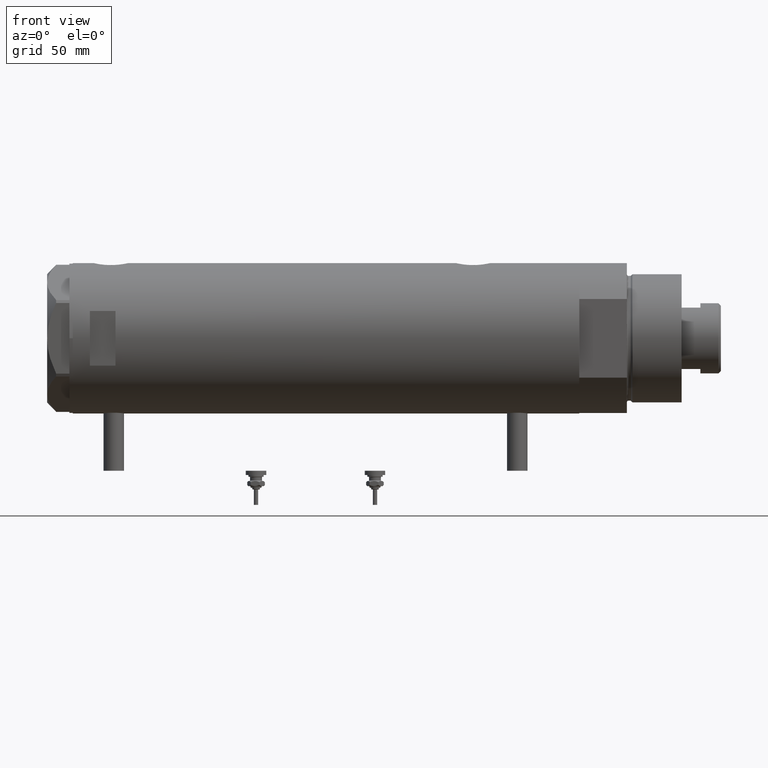
[diagram: clean part render]
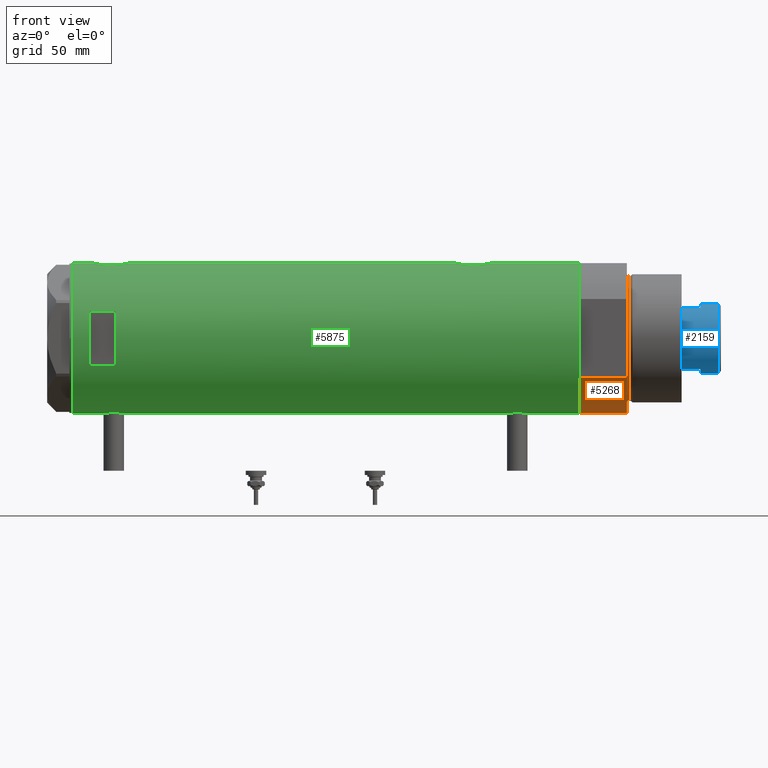
[diagram: same view with three faces highlighted in distinct colors, each labeled with its STEP entity id]
A machine part, front view with three faces highlighted in distinct colors.
Their STEP definitions:

[orange] entity #5268 — the highlighted cylindrical surface (partial cylindrical patch) has radius 44 mm, axis along (-1, -0, 0).
#34 = VECTOR ( 'NONE', #3246, 1000.000000000000000 ) ;
#63 = EDGE_CURVE ( 'NONE', #997, #3345, #1968, .T. ) ;
#121 = AXIS2_PLACEMENT_3D ( 'NONE', #3230, #3288, #5940 ) ;
#432 = CARTESIAN_POINT ( 'NONE',  ( 23.01629857296780557, -37.50000000000000000, 0.000000000000000000 ) ) ;
#449 = VERTEX_POINT ( 'NONE', #3900 ) ;
#583 = EDGE_CURVE ( 'NONE', #3345, #1297, #5446, .T. ) ;
#898 = LINE ( 'NONE', #432, #34 ) ;
#997 = VERTEX_POINT ( 'NONE', #1827 ) ;
#1075 = CARTESIAN_POINT ( 'NONE',  ( 23.01629857296780557, 37.50000000000000000, 27.89999999999999858 ) ) ;
#1089 = EDGE_CURVE ( 'NONE', #997, #449, #898, .T. ) ;
#1153 = CYLINDRICAL_SURFACE ( 'NONE', #5597, 44.00000000000000000 ) ;
#1291 = VECTOR ( 'NONE', #1435, 1000.000000000000000 ) ;
#1297 = VERTEX_POINT ( 'NONE', #1075 ) ;
#1435 = DIRECTION ( 'NONE',  ( -0.000000000000000000, -0.000000000000000000, 1.000000000000000000 ) ) ;
#1511 = CARTESIAN_POINT ( 'NONE',  ( 0.000000000000000000, 0.000000000000000000, 27.89999999999999858 ) ) ;
#1759 = EDGE_CURVE ( 'NONE', #449, #1297, #4981, .T. ) ;
#1827 = CARTESIAN_POINT ( 'NONE',  ( 23.01629857296780557, -37.50000000000000000, 0.000000000000000000 ) ) ;
#1968 = CIRCLE ( 'NONE', #121, 44.00000000000000000 ) ;
#2250 = ORIENTED_EDGE ( 'NONE', *, *, #1759, .F. ) ;
#2375 = AXIS2_PLACEMENT_3D ( 'NONE', #1511, #3404, #5259 ) ;
#2841 = ORIENTED_EDGE ( 'NONE', *, *, #1089, .F. ) ;
#3122 = CARTESIAN_POINT ( 'NONE',  ( 23.01629857296780557, 37.50000000000000000, 0.000000000000000000 ) ) ;
#3230 = CARTESIAN_POINT ( 'NONE',  ( 0.000000000000000000, 0.000000000000000000, 0.000000000000000000 ) ) ;
#3246 = DIRECTION ( 'NONE',  ( -0.000000000000000000, -0.000000000000000000, 1.000000000000000000 ) ) ;
#3288 = DIRECTION ( 'NONE',  ( 0.000000000000000000, 0.000000000000000000, 1.000000000000000000 ) ) ;
#3345 = VERTEX_POINT ( 'NONE', #3582 ) ;
#3404 = DIRECTION ( 'NONE',  ( 0.000000000000000000, 0.000000000000000000, 1.000000000000000000 ) ) ;
#3582 = CARTESIAN_POINT ( 'NONE',  ( 23.01629857296780557, 37.50000000000000000, 0.000000000000000000 ) ) ;
#3592 = ORIENTED_EDGE ( 'NONE', *, *, #583, .T. ) ;
#3900 = CARTESIAN_POINT ( 'NONE',  ( 23.01629857296780557, -37.50000000000000000, 27.89999999999999858 ) ) ;
#3933 = DIRECTION ( 'NONE',  ( -0.000000000000000000, -0.000000000000000000, -1.000000000000000000 ) ) ;
#4276 = EDGE_LOOP ( 'NONE', ( #2250, #2841, #4702, #3592 ) ) ;
#4702 = ORIENTED_EDGE ( 'NONE', *, *, #63, .T. ) ;
#4861 = CARTESIAN_POINT ( 'NONE',  ( 0.000000000000000000, 0.000000000000000000, 27.89999999999999858 ) ) ;
#4981 = CIRCLE ( 'NONE', #2375, 44.00000000000000000 ) ;
#5259 = DIRECTION ( 'NONE',  ( 1.000000000000000000, 0.000000000000000000, 0.000000000000000000 ) ) ;
#5268 = ADVANCED_FACE ( 'NONE', ( #5292 ), #1153, .T. ) ;
#5292 = FACE_OUTER_BOUND ( 'NONE', #4276, .T. ) ;
#5446 = LINE ( 'NONE', #3122, #1291 ) ;
#5597 = AXIS2_PLACEMENT_3D ( 'NONE', #4861, #3933, #5786 ) ;
#5786 = DIRECTION ( 'NONE',  ( -1.000000000000000000, 0.000000000000000000, 0.000000000000000000 ) ) ;
#5940 = DIRECTION ( 'NONE',  ( 1.000000000000000000, 0.000000000000000000, 0.000000000000000000 ) ) ;

[blue] entity #2159 — the highlighted cylindrical surface (edge-blend (fillet) strip) has radius 20.5 mm, axis along (-1, -0, 0).
#106 = ORIENTED_EDGE ( 'NONE', *, *, #3815, .T. ) ;
#150 = AXIS2_PLACEMENT_3D ( 'NONE', #4820, #2499, #230 ) ;
#202 = VERTEX_POINT ( 'NONE', #2238 ) ;
#230 = DIRECTION ( 'NONE',  ( -1.000000000000000000, 0.000000000000000000, 0.000000000000000000 ) ) ;
#232 = AXIS2_PLACEMENT_3D ( 'NONE', #5793, #797, #5758 ) ;
#238 = DIRECTION ( 'NONE',  ( -0.000000000000000000, -0.000000000000000000, -1.000000000000000000 ) ) ;
#347 = CIRCLE ( 'NONE', #3531, 20.50000000000000000 ) ;
#495 = EDGE_CURVE ( 'NONE', #3089, #202, #1593, .T. ) ;
#577 = ORIENTED_EDGE ( 'NONE', *, *, #6001, .T. ) ;
#592 = ORIENTED_EDGE ( 'NONE', *, *, #5316, .T. ) ;
#740 = CARTESIAN_POINT ( 'NONE',  ( 17.97852886083843060, -9.849999999999994316, 341.3000000000000114 ) ) ;
#755 = CARTESIAN_POINT ( 'NONE',  ( 0.000000000000000000, 0.000000000000000000, 341.3000000000000114 ) ) ;
#797 = DIRECTION ( 'NONE',  ( 0.000000000000000000, 0.000000000000000000, 1.000000000000000000 ) ) ;
#836 = CIRCLE ( 'NONE', #1128, 20.50000000000000000 ) ;
#890 = CARTESIAN_POINT ( 'NONE',  ( -20.50000000000000355, 0.000000000000000000, 351.8999999999999773 ) ) ;
#1114 = CYLINDRICAL_SURFACE ( 'NONE', #150, 20.50000000000000355 ) ;
#1128 = AXIS2_PLACEMENT_3D ( 'NONE', #2223, #4060, #2613 ) ;
#1230 = CARTESIAN_POINT ( 'NONE',  ( -17.97852886083842350, -9.850000000000001421, 341.3000000000000114 ) ) ;
#1344 = EDGE_CURVE ( 'NONE', #4854, #1569, #2459, .T. ) ;
#1385 = CARTESIAN_POINT ( 'NONE',  ( 0.000000000000000000, 0.000000000000000000, 351.8999999999999773 ) ) ;
#1569 = VERTEX_POINT ( 'NONE', #5076 ) ;
#1593 = LINE ( 'NONE', #5820, #5646 ) ;
#1650 = DIRECTION ( 'NONE',  ( -0.000000000000000000, -0.000000000000000000, -1.000000000000000000 ) ) ;
#1694 = DIRECTION ( 'NONE',  ( 1.000000000000000000, 0.000000000000000000, 0.000000000000000000 ) ) ;
#1763 = CARTESIAN_POINT ( 'NONE',  ( -17.97852886083842350, -9.850000000000029843, 330.2999999999999545 ) ) ;
#1866 = EDGE_CURVE ( 'NONE', #1881, #202, #347, .T. ) ;
#1881 = VERTEX_POINT ( 'NONE', #2150 ) ;
#1914 = ORIENTED_EDGE ( 'NONE', *, *, #1344, .T. ) ;
#2006 = VERTEX_POINT ( 'NONE', #5505 ) ;
#2150 = CARTESIAN_POINT ( 'NONE',  ( 17.97852886083843060, -9.849999999999994316, 341.3000000000000114 ) ) ;
#2159 = ADVANCED_FACE ( 'NONE', ( #3400 ), #1114, .T. ) ;
#2223 = CARTESIAN_POINT ( 'NONE',  ( 0.000000000000000000, 0.000000000000000000, 341.3000000000000114 ) ) ;
#2238 = CARTESIAN_POINT ( 'NONE',  ( 20.50000000000000000, 2.510525938252074481E-15, 341.3000000000000114 ) ) ;
#2459 = CIRCLE ( 'NONE', #232, 20.50000000000000355 ) ;
#2497 = VECTOR ( 'NONE', #1650, 1000.000000000000000 ) ;
#2499 = DIRECTION ( 'NONE',  ( -0.000000000000000000, -0.000000000000000000, -1.000000000000000000 ) ) ;
#2613 = DIRECTION ( 'NONE',  ( 1.000000000000000000, 0.000000000000000000, 0.000000000000000000 ) ) ;
#2982 = VECTOR ( 'NONE', #5003, 1000.000000000000000 ) ;
#3089 = VERTEX_POINT ( 'NONE', #3920 ) ;
#3124 = LINE ( 'NONE', #5944, #5402 ) ;
#3136 = LINE ( 'NONE', #1230, #2982 ) ;
#3235 = DIRECTION ( 'NONE',  ( 0.000000000000000000, 0.000000000000000000, -1.000000000000000000 ) ) ;
#3314 = ORIENTED_EDGE ( 'NONE', *, *, #495, .F. ) ;
#3400 = FACE_OUTER_BOUND ( 'NONE', #4855, .T. ) ;
#3531 = AXIS2_PLACEMENT_3D ( 'NONE', #755, #5385, #1694 ) ;
#3644 = EDGE_CURVE ( 'NONE', #2006, #5258, #836, .T. ) ;
#3700 = VERTEX_POINT ( 'NONE', #890 ) ;
#3815 = EDGE_CURVE ( 'NONE', #3089, #3700, #4408, .T. ) ;
#3920 = CARTESIAN_POINT ( 'NONE',  ( 20.50000000000000355, 2.510525938252074481E-15, 351.8999999999999773 ) ) ;
#4060 = DIRECTION ( 'NONE',  ( 0.000000000000000000, 0.000000000000000000, 1.000000000000000000 ) ) ;
#4298 = ORIENTED_EDGE ( 'NONE', *, *, #5958, .F. ) ;
#4408 = CIRCLE ( 'NONE', #5193, 20.50000000000000355 ) ;
#4413 = CARTESIAN_POINT ( 'NONE',  ( -17.97852886083842705, -9.849999999999996092, 341.3000000000000114 ) ) ;
#4710 = ORIENTED_EDGE ( 'NONE', *, *, #3644, .T. ) ;
#4820 = CARTESIAN_POINT ( 'NONE',  ( 0.000000000000000000, 0.000000000000000000, 341.3000000000000114 ) ) ;
#4854 = VERTEX_POINT ( 'NONE', #1763 ) ;
#4855 = EDGE_LOOP ( 'NONE', ( #3314, #106, #592, #4710, #577, #1914, #4298, #5592 ) ) ;
#5003 = DIRECTION ( 'NONE',  ( -0.000000000000000000, -0.000000000000000000, -1.000000000000000000 ) ) ;
#5076 = CARTESIAN_POINT ( 'NONE',  ( 17.97852886083843060, -9.850000000000019185, 330.2999999999999545 ) ) ;
#5193 = AXIS2_PLACEMENT_3D ( 'NONE', #1385, #3235, #5421 ) ;
#5258 = VERTEX_POINT ( 'NONE', #4413 ) ;
#5316 = EDGE_CURVE ( 'NONE', #3700, #2006, #3124, .T. ) ;
#5385 = DIRECTION ( 'NONE',  ( 0.000000000000000000, 0.000000000000000000, 1.000000000000000000 ) ) ;
#5402 = VECTOR ( 'NONE', #5976, 1000.000000000000000 ) ;
#5421 = DIRECTION ( 'NONE',  ( 1.000000000000000000, 0.000000000000000000, 0.000000000000000000 ) ) ;
#5465 = LINE ( 'NONE', #740, #2497 ) ;
#5505 = CARTESIAN_POINT ( 'NONE',  ( -20.50000000000000000, 0.000000000000000000, 341.3000000000000114 ) ) ;
#5592 = ORIENTED_EDGE ( 'NONE', *, *, #1866, .T. ) ;
#5646 = VECTOR ( 'NONE', #238, 1000.000000000000000 ) ;
#5758 = DIRECTION ( 'NONE',  ( 1.000000000000000000, 0.000000000000000000, 0.000000000000000000 ) ) ;
#5793 = CARTESIAN_POINT ( 'NONE',  ( 0.000000000000000000, 0.000000000000000000, 330.2999999999999545 ) ) ;
#5820 = CARTESIAN_POINT ( 'NONE',  ( 20.50000000000000355, 2.510525938252074481E-15, 341.3000000000000114 ) ) ;
#5944 = CARTESIAN_POINT ( 'NONE',  ( -20.50000000000000355, 0.000000000000000000, 341.3000000000000114 ) ) ;
#5958 = EDGE_CURVE ( 'NONE', #1881, #1569, #5465, .T. ) ;
#5976 = DIRECTION ( 'NONE',  ( -0.000000000000000000, -0.000000000000000000, -1.000000000000000000 ) ) ;
#6001 = EDGE_CURVE ( 'NONE', #5258, #4854, #3136, .T. ) ;

[green] entity #5875 — the highlighted cylindrical surface (partial cylindrical patch) has radius 44 mm, axis along (-1, -0, 0).
#6 = ORIENTED_EDGE ( 'NONE', *, *, #3373, .F. ) ;
#16 = B_SPLINE_CURVE_WITH_KNOTS ( 'NONE', 3,
 ( #5068, #3744, #3287, #2780, #4187, #1867, #52, #1472, #1355, #3317, #4623, #3202, #4131, #5599, #5135, #1443, #972, #6007, #1411, #2840, #5039, #907, #4711, #473, #3262, #5102, #4654, #501, #4681, #532, #2383, #5169, #4217, #84, #2878, #1026, #593, #2443, #1622, #684, #1586, #563, #5656, #1997, #172, #2527, #2954 ),
 .UNSPECIFIED., .F., .F.,
 ( 4, 2, 2, 2, 2, 2, 2, 2, 2, 2, 1, 2, 2, 2, 2, 2, 2, 2, 2, 2, 2, 2, 2, 4 ),
 ( 0.03136730421198213187, 0.03332724096696802751, 0.03528717772195392316, 0.03626714609944686751, 0.03724711447693981187, 0.03920705123192570751, 0.04018701960941865881, 0.04116698798691159622, 0.04312692474189755432, 0.04410689311939049867, 0.04508686149688344302, 0.04606682987437638044, 0.04704679825186932479, 0.04900673500685520656, 0.05096667176184109527, 0.05292660851682697010, 0.05390657689431993527, 0.05488654527181288656, 0.05586651364930585173, 0.05684648202679880302, 0.05880641878178471949, 0.05978638715927768466, 0.06076635553677064983, 0.06272629229175658017 ),
 .UNSPECIFIED. ) ;
#32 = CARTESIAN_POINT ( 'NONE',  ( 42.92195198079053142, -9.681069926205539744, -88.68932500906515770 ) ) ;
#36 = CARTESIAN_POINT ( 'NONE',  ( -43.93596008603758918, -2.395372424984029802, 118.4165081946938756 ) ) ;
#37 = CARTESIAN_POINT ( 'NONE',  ( -43.99417593155912698, -0.8219945290704717689, -105.6906189758703931 ) ) ;
#52 = CARTESIAN_POINT ( 'NONE',  ( 43.77763691689009562, -4.427538730370028652, 134.8724271220806656 ) ) ;
#84 = CARTESIAN_POINT ( 'NONE',  ( 43.39001814939471302, -7.304817421876452777, 119.0629653932832497 ) ) ;
#91 = CARTESIAN_POINT ( 'NONE',  ( 43.35323102813806173, -7.519449998269473134, -79.49957710715735004 ) ) ;
#96 = CARTESIAN_POINT ( 'NONE',  ( -43.88932649443422918, -3.137583818903199262, -106.4790096194045788 ) ) ;
#119 = CARTESIAN_POINT ( 'NONE',  ( -43.97059312650997498, -1.620278982928819778, 118.1602130861413116 ) ) ;
#149 = CARTESIAN_POINT ( 'NONE',  ( 44.00000000000000000, -0.6537011444665536963, -76.10000000000002274 ) ) ;
#172 = CARTESIAN_POINT ( 'NONE',  ( 43.98503203903423753, -1.316644100880400625, 115.9652704470436788 ) ) ;
#192 = CARTESIAN_POINT ( 'NONE',  ( -15.96871942267132027, -40.99999999999999289, 123.1999999999999744 ) ) ;
#223 = CARTESIAN_POINT ( 'NONE',  ( 0.000000000000000000, 0.000000000000000000, -148.1999999999999886 ) ) ;
#253 = DIRECTION ( 'NONE',  ( 0.000000000000000000, 0.000000000000000000, 1.000000000000000000 ) ) ;
#272 = CARTESIAN_POINT ( 'NONE',  ( -44.00000000000000000, 5.388445916248353619E-15, -148.1999999999999886 ) ) ;
#334 = ORIENTED_EDGE ( 'NONE', *, *, #4040, .T. ) ;
#342 = CARTESIAN_POINT ( 'NONE',  ( -43.60943079847655213, -5.850114217193378430, -114.1092187592660849 ) ) ;
#361 = EDGE_CURVE ( 'NONE', #2531, #457, #3591, .T. ) ;
#457 = VERTEX_POINT ( 'NONE', #3061 ) ;
#464 = AXIS2_PLACEMENT_3D ( 'NONE', #3339, #5198, #587 ) ;
#473 = CARTESIAN_POINT ( 'NONE',  ( 42.84860178791323193, -9.999866241079301332, 126.2339638269416895 ) ) ;
#482 = CARTESIAN_POINT ( 'NONE',  ( 43.13833976206232990, -8.672905216733550304, -81.07967078979186226 ) ) ;
#485 = CARTESIAN_POINT ( 'NONE',  ( -43.87623998657198143, -3.302247739865014964, 118.8896565648025785 ) ) ;
#486 = CARTESIAN_POINT ( 'NONE',  ( -43.60904414879379942, -5.852991024272603759, -109.6984368334709075 ) ) ;
#491 = EDGE_CURVE ( 'NONE', #4489, #4522, #757, .T. ) ;
#501 = CARTESIAN_POINT ( 'NONE',  ( 42.96573602780769363, -9.487415353952519226, 122.6726545541638274 ) ) ;
#508 = VECTOR ( 'NONE', #2962, 1000.000000000000000 ) ;
#509 = CARTESIAN_POINT ( 'NONE',  ( 42.92612181419234219, -9.662173761604309519, -83.50200210390283928 ) ) ;
#511 = VECTOR ( 'NONE', #4270, 1000.000000000000000 ) ;
#514 = CARTESIAN_POINT ( 'NONE',  ( -44.00000000000000000, 5.388445781982983516E-15, 117.9500000000000028 ) ) ;
#515 = CARTESIAN_POINT ( 'NONE',  ( -43.57636709704394917, -6.091127289750676077, -110.4850067433901586 ) ) ;
#532 = CARTESIAN_POINT ( 'NONE',  ( 43.13689707656755701, -8.680169016269175586, 120.8916309788880312 ) ) ;
#563 = CARTESIAN_POINT ( 'NONE',  ( 43.88203303552249679, -3.235230624304762603, 116.4320738693601811 ) ) ;
#573 = CARTESIAN_POINT ( 'NONE',  ( 43.39114022679083860, -7.298186114522535739, -79.25582720507938461 ) ) ;
#587 = DIRECTION ( 'NONE',  ( 1.000000000000000000, 0.000000000000000000, 0.000000000000000000 ) ) ;
#593 = CARTESIAN_POINT ( 'NONE',  ( 43.57553740812844723, -6.102230194686611320, 117.9710034401132788 ) ) ;
#600 = CARTESIAN_POINT ( 'NONE',  ( 43.50208939911752992, -6.605519787823897815, -93.61487246254432648 ) ) ;
#635 = CARTESIAN_POINT ( 'NONE',  ( -43.91398925748692506, -2.775454910411446541, 129.8147077568106624 ) ) ;
#653 = EDGE_CURVE ( 'NONE', #2633, #2906, #5941, .T. ) ;
#683 = ORIENTED_EDGE ( 'NONE', *, *, #2493, .F. ) ;
#684 = CARTESIAN_POINT ( 'NONE',  ( 43.77905627191559290, -4.445085099228545111, 116.9185916568396806 ) ) ;
#711 = CARTESIAN_POINT ( 'NONE',  ( -44.00000000000000000, 5.388445781982983516E-15, 117.9500000000000028 ) ) ;
#729 = CARTESIAN_POINT ( 'NONE',  ( -43.55380622335314200, -6.250277076879244831, 124.6088983339019194 ) ) ;
#751 = CARTESIAN_POINT ( 'NONE',  ( 0.000000000000000000, 0.000000000000000000, 138.1999999999999886 ) ) ;
#757 = LINE ( 'NONE', #272, #508 ) ;
#766 = LINE ( 'NONE', #2510, #1117 ) ;
#781 = CARTESIAN_POINT ( 'NONE',  ( -44.00000000000000000, 5.388445916248353619E-15, 148.1999999999999886 ) ) ;
#798 = CARTESIAN_POINT ( 'NONE',  ( -44.00000000000000000, 3.205170455528113082E-15, 130.4500000000000171 ) ) ;
#800 = EDGE_CURVE ( 'NONE', #3464, #457, #1961, .T. ) ;
#801 = CARTESIAN_POINT ( 'NONE',  ( -43.83572624786197025, -3.813948911733268776, -116.8683643022066150 ) ) ;
#871 = DIRECTION ( 'NONE',  ( 1.000000000000000000, 0.000000000000000000, 0.000000000000000000 ) ) ;
#900 = ORIENTED_EDGE ( 'NONE', *, *, #990, .F. ) ;
#907 = CARTESIAN_POINT ( 'NONE',  ( 42.86761451923556621, -9.918101748202657220, 127.2186752354962636 ) ) ;
#925 = CARTESIAN_POINT ( 'NONE',  ( -43.99432382855035684, -0.8140126287075735156, 117.9895783318308560 ) ) ;
#927 = DIRECTION ( 'NONE',  ( -1.000000000000000000, 0.000000000000000000, 0.000000000000000000 ) ) ;
#948 = CARTESIAN_POINT ( 'NONE',  ( 43.88203303552248968, -3.235230624304769709, -95.56792613063983310 ) ) ;
#951 = CARTESIAN_POINT ( 'NONE',  ( -44.00000000000001421, -0.4080709675389180835, 117.9500000000000171 ) ) ;
#956 = EDGE_CURVE ( 'NONE', #3959, #3464, #3405, .T. ) ;
#972 = CARTESIAN_POINT ( 'NONE',  ( 43.07447880731469780, -8.980869115410031966, 130.3470997020410209 ) ) ;
#980 = CARTESIAN_POINT ( 'NONE',  ( 43.80655905412562134, -4.132395729537634566, -76.98794673806234812 ) ) ;
#983 = CARTESIAN_POINT ( 'NONE',  ( -43.74813644611199948, -4.709999724143497879, -107.7715595605677095 ) ) ;
#989 = DIRECTION ( 'NONE',  ( -0.000000000000000000, -0.000000000000000000, -1.000000000000000000 ) ) ;
#990 = EDGE_CURVE ( 'NONE', #4561, #2396, #1201, .T. ) ;
#1004 = CARTESIAN_POINT ( 'NONE',  ( 43.77905627191558580, -4.445085099228550440, -95.08140834316036205 ) ) ;
#1014 = B_SPLINE_CURVE_WITH_KNOTS ( 'NONE', 3,
 ( #514, #951, #925, #2792, #119, #4638, #36, #5184, #2889, #485, #1879, #1950, #3724, #4609, #5578, #3757, #5612, #1484, #3326, #2426, #3668, #5520, #729, #1978, #3818, #5667, #2007, #3850, #1519, #2094, #2999, #3357, #5700, #2454, #3936, #635, #4773, #5326, #1601, #1548, #3387, #3876, #1070 ),
 .UNSPECIFIED., .F., .F.,
 ( 4, 2, 2, 1, 2, 2, 2, 2, 2, 2, 2, 2, 2, 2, 2, 2, 2, 2, 2, 2, 2, 4 ),
 ( 0.01956509074799516260, 0.02078761141254046457, 0.02139887174481311383, 0.02201013207708576655, 0.02262139240935841580, 0.02323265274163106506, 0.02445517340617638785, 0.02567769407072171411, 0.02690021473526703691, 0.02751147506753969657, 0.02812273539981235970, 0.02934525606435772760, 0.03056777672890308856, 0.03117903706117573087, 0.03179029739344837319, 0.03301281805799358149, 0.03423533872253878979, 0.03545785938708399809, 0.03668038005162919946, 0.03729164038390180014, 0.03790290071617440082, 0.03912542138071962300 ),
 .UNSPECIFIED. ) ;
#1026 = CARTESIAN_POINT ( 'NONE',  ( 43.50208939911753703, -6.605519787823886269, 118.3851275374557162 ) ) ;
#1036 = CARTESIAN_POINT ( 'NONE',  ( 43.77763691689010273, -4.427538730370040199, -77.12757287791932015 ) ) ;
#1041 = CARTESIAN_POINT ( 'NONE',  ( -43.55964145621772587, -6.209995197331129368, -111.0847638661642947 ) ) ;
#1058 = EDGE_CURVE ( 'NONE', #2906, #4282, #2268, .T. ) ;
#1067 = CARTESIAN_POINT ( 'NONE',  ( 42.86761451923556621, -9.918101748202653667, -84.78132476450375066 ) ) ;
#1070 = CARTESIAN_POINT ( 'NONE',  ( -44.00000000000000000, 3.205170455528113082E-15, 130.4500000000000171 ) ) ;
#1117 = VECTOR ( 'NONE', #3908, 1000.000000000000000 ) ;
#1201 = CIRCLE ( 'NONE', #5158, 44.00000000000000000 ) ;
#1208 = DIRECTION ( 'NONE',  ( -0.000000000000000000, 0.000000000000000000, -1.000000000000000000 ) ) ;
#1225 = ORIENTED_EDGE ( 'NONE', *, *, #491, .F. ) ;
#1312 = CARTESIAN_POINT ( 'NONE',  ( -43.88927795770375440, -3.124736516396337649, -117.3166740492380598 ) ) ;
#1342 = CARTESIAN_POINT ( 'NONE',  ( -43.97755541524606571, -1.419649999726221967, -117.9901114392363439 ) ) ;
#1355 = CARTESIAN_POINT ( 'NONE',  ( 43.68175117880464597, -5.289576318274422206, 134.3927754329155846 ) ) ;
#1382 = AXIS2_PLACEMENT_3D ( 'NONE', #223, #5405, #2554 ) ;
#1411 = CARTESIAN_POINT ( 'NONE',  ( 42.96858625215908489, -9.471543237354838496, 129.1244477931078336 ) ) ;
#1420 = CARTESIAN_POINT ( 'NONE',  ( 43.57790701154753066, -6.104591320335878812, -78.15258699105068274 ) ) ;
#1443 = CARTESIAN_POINT ( 'NONE',  ( 43.13833976206232990, -8.672905216733560962, 130.9203292102081377 ) ) ;
#1449 = CARTESIAN_POINT ( 'NONE',  ( 43.35257225115238811, -7.523216248090025537, -92.69605303592345535 ) ) ;
#1454 = CARTESIAN_POINT ( 'NONE',  ( -43.91398925748691084, -2.775454910411443876, -106.2852922431893319 ) ) ;
#1472 = CARTESIAN_POINT ( 'NONE',  ( 43.71528002050701645, -5.005885132985630648, 134.5630630671448955 ) ) ;
#1477 = ORIENTED_EDGE ( 'NONE', *, *, #3973, .F. ) ;
#1481 = CARTESIAN_POINT ( 'NONE',  ( 43.88549648731377317, -3.229309612650779648, -76.61335697513617049 ) ) ;
#1484 = CARTESIAN_POINT ( 'NONE',  ( -43.59994860325049615, -5.920144153815568799, 122.1859364243023549 ) ) ;
#1498 = CARTESIAN_POINT ( 'NONE',  ( 44.00000000000000000, -3.917205576288906830E-21, 135.9000000000000341 ) ) ;
#1513 = CARTESIAN_POINT ( 'NONE',  ( 43.50370990764398016, -6.606474645717129057, -78.56479064715114191 ) ) ;
#1519 = CARTESIAN_POINT ( 'NONE',  ( -43.64013512596971367, -5.618144550806302817, 126.9688425437316681 ) ) ;
#1520 = CARTESIAN_POINT ( 'NONE',  ( -43.95404166778755695, -2.020054257598466574, -105.9819105451434638 ) ) ;
#1529 = VECTOR ( 'NONE', #4628, 1000.000000000000000 ) ;
#1533 = ORIENTED_EDGE ( 'NONE', *, *, #2017, .F. ) ;
#1544 = CARTESIAN_POINT ( 'NONE',  ( 43.61181667275830165, -5.838254419127787642, -94.22544109417493985 ) ) ;
#1548 = CARTESIAN_POINT ( 'NONE',  ( -43.97729452866926891, -1.427712738744846055, 130.2882290744342981 ) ) ;
#1586 = CARTESIAN_POINT ( 'NONE',  ( 43.85817087158036287, -3.542878095418166229, 116.5429633888447682 ) ) ;
#1587 = CARTESIAN_POINT ( 'NONE',  ( 15.96871942267132027, -40.99999999999999289, 138.1999999999999886 ) ) ;
#1601 = CARTESIAN_POINT ( 'NONE',  ( -43.97029046111976669, -1.628482392291942471, 130.2375861979205354 ) ) ;
#1622 = CARTESIAN_POINT ( 'NONE',  ( 43.71626298452614634, -5.019105827807306852, 117.2258656202040470 ) ) ;
#1686 = CARTESIAN_POINT ( 'NONE',  ( -44.00000000000000000, 5.388445781982983516E-15, -118.1500000000000057 ) ) ;
#1691 = DIRECTION ( 'NONE',  ( 1.000000000000000000, 0.000000000000000000, 0.000000000000000000 ) ) ;
#1710 = CARTESIAN_POINT ( 'NONE',  ( -43.71916086763248899, -4.968610719017467758, -115.7133599885462871 ) ) ;
#1734 = CARTESIAN_POINT ( 'NONE',  ( 44.00000000000000000, -3.917104602093038540E-21, -76.10000000000000853 ) ) ;
#1756 = DIRECTION ( 'NONE',  ( 0.000000000000000000, 0.000000000000000000, 1.000000000000000000 ) ) ;
#1762 = CARTESIAN_POINT ( 'NONE',  ( -43.93596008603760339, -2.395372424984027582, -117.6834918053061330 ) ) ;
#1851 = CARTESIAN_POINT ( 'NONE',  ( -43.59959777593760322, -5.922725608094071781, -109.8935068878258079 ) ) ;
#1853 = CARTESIAN_POINT ( 'NONE',  ( 0.000000000000000000, 0.000000000000000000, 148.1999999999999886 ) ) ;
#1867 = CARTESIAN_POINT ( 'NONE',  ( 43.80655905412561424, -4.132395729537634566, 135.0120532619376377 ) ) ;
#1879 = CARTESIAN_POINT ( 'NONE',  ( -43.83572624786196315, -3.813948911733267888, 119.2316356977933651 ) ) ;
#1880 = CARTESIAN_POINT ( 'NONE',  ( -43.58327167020068060, -6.041691433183235205, -110.2867244921663428 ) ) ;
#1908 = CARTESIAN_POINT ( 'NONE',  ( 43.92776409818817740, -2.602555515054471247, -76.42196650712921269 ) ) ;
#1912 = CARTESIAN_POINT ( 'NONE',  ( -43.55380622335315621, -6.250277076879243943, -111.4911016660981176 ) ) ;
#1950 = CARTESIAN_POINT ( 'NONE',  ( -43.80686114384899810, -4.128296917151109469, 119.4898414487168878 ) ) ;
#1951 = CARTESIAN_POINT ( 'NONE',  ( -44.00000000000000000, 4.742435893011557518E-16, -105.6499999999999915 ) ) ;
#1961 = LINE ( 'NONE', #3859, #511 ) ;
#1964 = CARTESIAN_POINT ( 'NONE',  ( 15.96871942267132027, -40.99999999999999289, 123.1999999999999744 ) ) ;
#1978 = CARTESIAN_POINT ( 'NONE',  ( -43.55964145621772587, -6.209995197331128480, 125.0152361338357565 ) ) ;
#1997 = CARTESIAN_POINT ( 'NONE',  ( 43.94187300917954531, -2.283844398366604800, 116.1587395318295250 ) ) ;
#2004 = CARTESIAN_POINT ( 'NONE',  ( 43.39001814939470592, -7.304817421876465211, -92.93703460671677874 ) ) ;
#2007 = CARTESIAN_POINT ( 'NONE',  ( -43.59959777593760322, -5.922725608094065564, 126.2064931121741864 ) ) ;
#2017 = EDGE_CURVE ( 'NONE', #5863, #3316, #16, .T. ) ;
#2019 = VECTOR ( 'NONE', #1756, 1000.000000000000000 ) ;
#2094 = CARTESIAN_POINT ( 'NONE',  ( -43.66469451360047316, -5.426465874727615990, 127.3277459186421225 ) ) ;
#2177 = ORIENTED_EDGE ( 'NONE', *, *, #653, .F. ) ;
#2178 = EDGE_LOOP ( 'NONE', ( #3706, #2331, #4564, #4503, #334, #1533, #3514, #900, #2228, #2683, #1225, #6 ) ) ;
#2228 = ORIENTED_EDGE ( 'NONE', *, *, #5400, .F. ) ;
#2268 = CIRCLE ( 'NONE', #4481, 44.00000000000000000 ) ;
#2295 = CIRCLE ( 'NONE', #3254, 44.00000000000000000 ) ;
#2316 = CARTESIAN_POINT ( 'NONE',  ( -43.97029046111977379, -1.628482392291957126, -105.8624138020794447 ) ) ;
#2331 = ORIENTED_EDGE ( 'NONE', *, *, #956, .T. ) ;
#2334 = CARTESIAN_POINT ( 'NONE',  ( 44.00000000000000000, -2.552687571866728611E-15, -96.10000000000000853 ) ) ;
#2336 = CARTESIAN_POINT ( 'NONE',  ( -43.66469451360045895, -5.426465874727613325, -108.7722540813579002 ) ) ;
#2362 = CARTESIAN_POINT ( 'NONE',  ( 42.84860178791321772, -9.999866241079296003, -85.76603617305838156 ) ) ;
#2383 = CARTESIAN_POINT ( 'NONE',  ( 43.24192112218942441, -8.134529092006102857, 120.0744777013589299 ) ) ;
#2392 = CARTESIAN_POINT ( 'NONE',  ( 42.84850870634926423, -10.00026508230968503, -86.75583915121745804 ) ) ;
#2396 = VERTEX_POINT ( 'NONE', #3760 ) ;
#2423 = CARTESIAN_POINT ( 'NONE',  ( 42.96858625215907779, -9.471543237354833167, -82.87555220689219482 ) ) ;
#2426 = CARTESIAN_POINT ( 'NONE',  ( -43.57664920749031978, -6.089110472216502146, 122.7763691313058985 ) ) ;
#2443 = CARTESIAN_POINT ( 'NONE',  ( 43.61181667275830875, -5.838254419127776096, 117.7745589058250744 ) ) ;
#2450 = CARTESIAN_POINT ( 'NONE',  ( 43.85817087158034866, -3.542878095418174667, -95.45703661115521754 ) ) ;
#2454 = CARTESIAN_POINT ( 'NONE',  ( -43.83513771791772484, -3.820747781112540764, 129.1632101829637236 ) ) ;
#2493 = EDGE_CURVE ( 'NONE', #4282, #5626, #766, .T. ) ;
#2510 = CARTESIAN_POINT ( 'NONE',  ( 15.96871942267132027, -40.99999999999999289, -148.1999999999999886 ) ) ;
#2527 = CARTESIAN_POINT ( 'NONE',  ( 43.99999999999998579, -0.6628808997490075461, 115.8999999999999915 ) ) ;
#2531 = VERTEX_POINT ( 'NONE', #1734 ) ;
#2554 = DIRECTION ( 'NONE',  ( 1.000000000000000000, 0.000000000000000000, 0.000000000000000000 ) ) ;
#2633 = VERTEX_POINT ( 'NONE', #3662 ) ;
#2646 = CARTESIAN_POINT ( 'NONE',  ( -43.64064219598290606, -5.614224114468902904, -114.6768548961947261 ) ) ;
#2676 = VECTOR ( 'NONE', #3469, 1000.000000000000000 ) ;
#2683 = ORIENTED_EDGE ( 'NONE', *, *, #2947, .F. ) ;
#2780 = CARTESIAN_POINT ( 'NONE',  ( 43.92776409818819872, -2.602555515054473467, 135.5780334928707589 ) ) ;
#2792 = CARTESIAN_POINT ( 'NONE',  ( -43.97755541524607992, -1.419649999726221745, 118.1098885607636646 ) ) ;
#2822 = CARTESIAN_POINT ( 'NONE',  ( -43.83513771791772484, -3.820747781112549202, -106.9367898170362565 ) ) ;
#2826 = EDGE_CURVE ( 'NONE', #5863, #2396, #5674, .T. ) ;
#2840 = CARTESIAN_POINT ( 'NONE',  ( 42.92612181419237771, -9.662173761604313071, 128.4979978960971323 ) ) ;
#2852 = CARTESIAN_POINT ( 'NONE',  ( 43.92391465552168484, -2.605621203777308104, -95.76018015101779213 ) ) ;
#2878 = CARTESIAN_POINT ( 'NONE',  ( 43.46477581456304051, -6.845969322274839008, 118.6035553987669147 ) ) ;
#2886 = CARTESIAN_POINT ( 'NONE',  ( 42.85249883256043546, -9.983208936152868418, -85.43427783458179192 ) ) ;
#2889 = CARTESIAN_POINT ( 'NONE',  ( -43.88927795770376150, -3.124736516396337205, 118.7833259507619630 ) ) ;
#2906 = VERTEX_POINT ( 'NONE', #192 ) ;
#2913 = CARTESIAN_POINT ( 'NONE',  ( 42.86369059155249772, -9.935849517229277339, -87.40637410018203468 ) ) ;
#2947 = EDGE_CURVE ( 'NONE', #4522, #4997, #1014, .T. ) ;
#2954 = CARTESIAN_POINT ( 'NONE',  ( 44.00000000000000000, -1.726036355082439716E-15, 115.9000000000000199 ) ) ;
#2962 = DIRECTION ( 'NONE',  ( 0.000000000000000000, 0.000000000000000000, 1.000000000000000000 ) ) ;
#2999 = CARTESIAN_POINT ( 'NONE',  ( -43.71863308610075194, -4.973248429199021992, 128.0073779012117257 ) ) ;
#3061 = CARTESIAN_POINT ( 'NONE',  ( 44.00000000000000000, -2.552687571866728611E-15, -96.10000000000000853 ) ) ;
#3106 = CARTESIAN_POINT ( 'NONE',  ( -43.80686114384900520, -4.128296917151112133, -116.6101585512831207 ) ) ;
#3186 = CARTESIAN_POINT ( 'NONE',  ( -43.59994860325051036, -5.920144153815573240, -113.9140635756975968 ) ) ;
#3202 = CARTESIAN_POINT ( 'NONE',  ( 43.39114022679084570, -7.298186114522522416, 132.7441727949206438 ) ) ;
#3215 = CARTESIAN_POINT ( 'NONE',  ( -43.87623998657198143, -3.302247739865014964, -117.2103434351974443 ) ) ;
#3217 = DIRECTION ( 'NONE',  ( 0.000000000000000000, 0.000000000000000000, 1.000000000000000000 ) ) ;
#3254 = AXIS2_PLACEMENT_3D ( 'NONE', #751, #1208, #1691 ) ;
#3262 = CARTESIAN_POINT ( 'NONE',  ( 42.84850870634925002, -10.00026508230968325, 125.2441608487825988 ) ) ;
#3287 = CARTESIAN_POINT ( 'NONE',  ( 43.98543813568862504, -1.304985013906734048, 135.8365306627388236 ) ) ;
#3295 = CARTESIAN_POINT ( 'NONE',  ( 43.46477581456301920, -6.845969322274847890, -93.39644460123308534 ) ) ;
#3316 = VERTEX_POINT ( 'NONE', #5865 ) ;
#3317 = CARTESIAN_POINT ( 'NONE',  ( 43.57790701154752355, -6.104591320335862825, 133.8474130089493315 ) ) ;
#3323 = CARTESIAN_POINT ( 'NONE',  ( 43.71528002050701645, -5.005885132985640418, -77.43693693285514712 ) ) ;
#3326 = CARTESIAN_POINT ( 'NONE',  ( -43.58358352828439308, -6.039443007521653861, 122.5783690161426023 ) ) ;
#3339 = CARTESIAN_POINT ( 'NONE',  ( 0.000000000000000000, 0.000000000000000000, -148.1999999999999886 ) ) ;
#3355 = CARTESIAN_POINT ( 'NONE',  ( 44.00000000000000000, -3.917104602093038540E-21, -76.10000000000000853 ) ) ;
#3357 = CARTESIAN_POINT ( 'NONE',  ( -43.74813644611202079, -4.709999724143500544, 128.3284404394322564 ) ) ;
#3373 = EDGE_CURVE ( 'NONE', #4693, #4489, #5093, .T. ) ;
#3387 = CARTESIAN_POINT ( 'NONE',  ( -43.99417593155911987, -0.8219945290704597785, 130.4093810241296012 ) ) ;
#3388 = CARTESIAN_POINT ( 'NONE',  ( 44.00000000000000000, 0.000000000000000000, -148.1999999999999886 ) ) ;
#3405 = CIRCLE ( 'NONE', #1382, 44.00000000000000000 ) ;
#3426 = VECTOR ( 'NONE', #253, 1000.000000000000000 ) ;
#3464 = VERTEX_POINT ( 'NONE', #3388 ) ;
#3469 = DIRECTION ( 'NONE',  ( 0.000000000000000000, 0.000000000000000000, 1.000000000000000000 ) ) ;
#3514 = ORIENTED_EDGE ( 'NONE', *, *, #2826, .T. ) ;
#3548 = CARTESIAN_POINT ( 'NONE',  ( -43.95442538259509746, -2.011679190499023662, -117.8209354650977616 ) ) ;
#3591 = B_SPLINE_CURVE_WITH_KNOTS ( 'NONE', 3,
 ( #3355, #149, #5635, #1908, #1481, #980, #1036, #3323, #5078, #1420, #1513, #573, #91, #5662, #5212, #482, #4662, #5144, #2423, #509, #5177, #1067, #2886, #2362, #2392, #2913, #32, #5696, #4721, #3754, #4744, #4194, #1449, #2004, #3295, #600, #5575, #1544, #4226, #1004, #2450, #948, #2852, #4690, #4633, #4285, #2334 ),
 .UNSPECIFIED., .F., .F.,
 ( 4, 2, 2, 2, 2, 2, 2, 2, 2, 2, 1, 2, 2, 2, 2, 2, 2, 2, 2, 2, 2, 2, 2, 4 ),
 ( 0.03136730421198213881, 0.03332724096696802751, 0.03528717772195391622, 0.03626714609944684670, 0.03724711447693978411, 0.03920705123192565894, 0.04018701960941859636, 0.04116698798691152683, 0.04312692474189736697, 0.04410689311939030438, 0.04508686149688324180, 0.04606682987437617921, 0.04704679825186912356, 0.04900673500685504003, 0.05096667176184094955, 0.05292660851682686601, 0.05390657689431983812, 0.05488654527181281717, 0.05586651364930578928, 0.05684648202679876139, 0.05880641878178470561, 0.05978638715927767078, 0.06076635553677063595, 0.06272629229175656629 ),
 .UNSPECIFIED. ) ;
#3662 = CARTESIAN_POINT ( 'NONE',  ( -15.96871942267132027, -40.99999999999999289, 138.1999999999999886 ) ) ;
#3668 = CARTESIAN_POINT ( 'NONE',  ( -43.55981666146649900, -6.208773019004407701, 123.3756200080638195 ) ) ;
#3693 = CARTESIAN_POINT ( 'NONE',  ( -43.64013512596971367, -5.618144550806293047, -109.1311574562683404 ) ) ;
#3698 = CARTESIAN_POINT ( 'NONE',  ( 44.00000000000000000, 0.000000000000000000, -148.1999999999999886 ) ) ;
#3706 = ORIENTED_EDGE ( 'NONE', *, *, #5431, .F. ) ;
#3709 = ORIENTED_EDGE ( 'NONE', *, *, #1058, .F. ) ;
#3724 = CARTESIAN_POINT ( 'NONE',  ( -43.74870614644076738, -4.704745394280562820, 120.0655351265997410 ) ) ;
#3744 = CARTESIAN_POINT ( 'NONE',  ( 43.99999999999999289, -0.6537011444665495885, 135.9000000000000341 ) ) ;
#3754 = CARTESIAN_POINT ( 'NONE',  ( 43.13689707656756411, -8.680169016269173810, -91.10836902111202562 ) ) ;
#3757 = CARTESIAN_POINT ( 'NONE',  ( -43.64064219598290606, -5.614224114468902904, 121.4231451038052683 ) ) ;
#3758 = CARTESIAN_POINT ( 'NONE',  ( -43.71863308610073773, -4.973248429199020215, -108.0926220987882687 ) ) ;
#3760 = CARTESIAN_POINT ( 'NONE',  ( 44.00000000000000000, 0.000000000000000000, 148.1999999999999886 ) ) ;
#3779 = CARTESIAN_POINT ( 'NONE',  ( -44.00000000000000000, 5.388445916248353619E-15, -148.1999999999999886 ) ) ;
#3818 = CARTESIAN_POINT ( 'NONE',  ( -43.57636709704393496, -6.091127289750671636, 125.6149932566098215 ) ) ;
#3850 = CARTESIAN_POINT ( 'NONE',  ( -43.60904414879379942, -5.852991024272610865, 126.4015631665290300 ) ) ;
#3859 = CARTESIAN_POINT ( 'NONE',  ( 44.00000000000000000, 0.000000000000000000, -148.1999999999999886 ) ) ;
#3876 = CARTESIAN_POINT ( 'NONE',  ( -43.99999999999999289, -0.4134142287044815789, 130.4500000000000455 ) ) ;
#3896 = CARTESIAN_POINT ( 'NONE',  ( -44.00000000000000000, 5.388445916248353619E-15, -148.1999999999999886 ) ) ;
#3908 = DIRECTION ( 'NONE',  ( 0.000000000000000000, 0.000000000000000000, 1.000000000000000000 ) ) ;
#3936 = CARTESIAN_POINT ( 'NONE',  ( -43.88932649443425049, -3.137583818903188160, 129.6209903805954866 ) ) ;
#3959 = VERTEX_POINT ( 'NONE', #3896 ) ;
#3973 = EDGE_CURVE ( 'NONE', #5626, #2633, #2295, .T. ) ;
#3988 = LINE ( 'NONE', #4369, #2676 ) ;
#4007 = CARTESIAN_POINT ( 'NONE',  ( -43.74870614644074607, -4.704745394280565485, -116.0344648734002249 ) ) ;
#4040 = EDGE_CURVE ( 'NONE', #2531, #3316, #3988, .T. ) ;
#4116 = CARTESIAN_POINT ( 'NONE',  ( -44.00000000000000000, 5.388445781982983516E-15, -118.1500000000000057 ) ) ;
#4131 = CARTESIAN_POINT ( 'NONE',  ( 43.35323102813806173, -7.519449998269469582, 132.5004228928426642 ) ) ;
#4171 = CARTESIAN_POINT ( 'NONE',  ( -43.97729452866927602, -1.427712738744854715, -105.8117709255657815 ) ) ;
#4187 = CARTESIAN_POINT ( 'NONE',  ( 43.88549648731375896, -3.229309612650777872, 135.3866430248638437 ) ) ;
#4194 = CARTESIAN_POINT ( 'NONE',  ( 43.27861175590267351, -7.937636171351966752, -92.19102867990994810 ) ) ;
#4198 = CARTESIAN_POINT ( 'NONE',  ( -43.94477385411916970, -2.211843467998029666, -106.0509277007713678 ) ) ;
#4217 = CARTESIAN_POINT ( 'NONE',  ( 43.35257225115238100, -7.523216248090027314, 119.3039469640765731 ) ) ;
#4226 = CARTESIAN_POINT ( 'NONE',  ( 43.71626298452615345, -5.019105827807321951, -94.77413437979603827 ) ) ;
#4244 = CYLINDRICAL_SURFACE ( 'NONE', #464, 44.00000000000000000 ) ;
#4270 = DIRECTION ( 'NONE',  ( 0.000000000000000000, 0.000000000000000000, 1.000000000000000000 ) ) ;
#4282 = VERTEX_POINT ( 'NONE', #1964 ) ;
#4285 = CARTESIAN_POINT ( 'NONE',  ( 43.99999999999999289, -0.6628808997490059918, -96.10000000000000853 ) ) ;
#4307 = CARTESIAN_POINT ( 'NONE',  ( -44.00000000000000000, 4.742435893011557518E-16, -105.6499999999999915 ) ) ;
#4369 = CARTESIAN_POINT ( 'NONE',  ( 44.00000000000000000, 0.000000000000000000, -148.1999999999999886 ) ) ;
#4481 = AXIS2_PLACEMENT_3D ( 'NONE', #5960, #5058, #927 ) ;
#4489 = VERTEX_POINT ( 'NONE', #4307 ) ;
#4503 = ORIENTED_EDGE ( 'NONE', *, *, #361, .F. ) ;
#4522 = VERTEX_POINT ( 'NONE', #711 ) ;
#4561 = VERTEX_POINT ( 'NONE', #781 ) ;
#4564 = ORIENTED_EDGE ( 'NONE', *, *, #800, .T. ) ;
#4609 = CARTESIAN_POINT ( 'NONE',  ( -43.71916086763250320, -4.968610719017469535, 120.3866400114537782 ) ) ;
#4623 = CARTESIAN_POINT ( 'NONE',  ( 43.50370990764397305, -6.606474645717115735, 133.4352093528489149 ) ) ;
#4628 = DIRECTION ( 'NONE',  ( 0.000000000000000000, 0.000000000000000000, 1.000000000000000000 ) ) ;
#4633 = CARTESIAN_POINT ( 'NONE',  ( 43.98503203903424463, -1.316644100880403956, -96.03472955295633540 ) ) ;
#4638 = CARTESIAN_POINT ( 'NONE',  ( -43.95442538259508325, -2.011679190499021885, 118.2790645349021617 ) ) ;
#4639 = CARTESIAN_POINT ( 'NONE',  ( -43.55981666146650610, -6.208773019004409477, -112.7243799919361606 ) ) ;
#4654 = CARTESIAN_POINT ( 'NONE',  ( 42.92195198079053142, -9.681069926205541520, 123.3106749909349134 ) ) ;
#4662 = CARTESIAN_POINT ( 'NONE',  ( 43.07447880731469780, -8.980869115410037296, -81.65290029795900750 ) ) ;
#4664 = CARTESIAN_POINT ( 'NONE',  ( -44.00000000000000711, -0.4134142287044808017, -105.6500000000000057 ) ) ;
#4681 = CARTESIAN_POINT ( 'NONE',  ( 43.07321175413309078, -8.986876637256990819, 121.4657179801124727 ) ) ;
#4684 = LINE ( 'NONE', #3779, #1529 ) ;
#4690 = CARTESIAN_POINT ( 'NONE',  ( 43.94187300917954531, -2.283844398366611905, -95.84126046817046074 ) ) ;
#4693 = VERTEX_POINT ( 'NONE', #1686 ) ;
#4711 = CARTESIAN_POINT ( 'NONE',  ( 42.85249883256044257, -9.983208936152875523, 126.5657221654182791 ) ) ;
#4721 = CARTESIAN_POINT ( 'NONE',  ( 43.07321175413309788, -8.986876637256990819, -90.53428201988754154 ) ) ;
#4744 = CARTESIAN_POINT ( 'NONE',  ( 43.24192112218942441, -8.134529092006102857, -91.92552229864112689 ) ) ;
#4773 = CARTESIAN_POINT ( 'NONE',  ( -43.94477385411916259, -2.211843467998029222, 130.0490722992286408 ) ) ;
#4816 = FACE_BOUND ( 'NONE', #5006, .T. ) ;
#4966 = CARTESIAN_POINT ( 'NONE',  ( -43.91347832647110039, -2.763895659397271665, -117.5093864937758497 ) ) ;
#4997 = VERTEX_POINT ( 'NONE', #798 ) ;
#4998 = CARTESIAN_POINT ( 'NONE',  ( -43.99432382855034973, -0.8140126287075730716, -118.1104216681691526 ) ) ;
#5006 = EDGE_LOOP ( 'NONE', ( #3709, #2177, #1477, #683 ) ) ;
#5018 = CARTESIAN_POINT ( 'NONE',  ( -44.00000000000000000, 5.388445916248353619E-15, -148.1999999999999886 ) ) ;
#5039 = CARTESIAN_POINT ( 'NONE',  ( 42.89003040145177437, -9.821289533110936887, 127.8649162832999622 ) ) ;
#5058 = DIRECTION ( 'NONE',  ( 0.000000000000000000, 0.000000000000000000, 1.000000000000000000 ) ) ;
#5068 = CARTESIAN_POINT ( 'NONE',  ( 44.00000000000000000, -3.917205576288906830E-21, 135.9000000000000341 ) ) ;
#5078 = CARTESIAN_POINT ( 'NONE',  ( 43.68175117880463887, -5.289576318274435529, -77.60722456708444383 ) ) ;
#5093 = B_SPLINE_CURVE_WITH_KNOTS ( 'NONE', 3,
 ( #4116, #5987, #4998, #1342, #5956, #3548, #1762, #4966, #1312, #3215, #801, #3106, #4007, #1710, #5403, #2646, #342, #3186, #5641, #5148, #4639, #5579, #1912, #1041, #515, #1880, #1851, #486, #3693, #2336, #3758, #983, #5550, #2822, #96, #1454, #4198, #1520, #2316, #4171, #37, #4664, #1951 ),
 .UNSPECIFIED., .F., .F.,
 ( 4, 2, 2, 1, 2, 2, 2, 2, 2, 2, 2, 2, 2, 2, 2, 2, 2, 2, 2, 2, 2, 4 ),
 ( 0.01956509074799517994, 0.02078761141254040559, 0.02139887174481301668, 0.02201013207708563124, 0.02262139240935824580, 0.02323265274163085689, 0.02445517340617610336, 0.02567769407072134982, 0.02690021473526659629, 0.02751147506753922126, 0.02812273539981184622, 0.02934525606435713085, 0.03056777672890241548, 0.03117903706117506127, 0.03179029739344770011, 0.03301281805799302638, 0.03423533872253835264, 0.03545785938708367196, 0.03668038005162899129, 0.03729164038390166136, 0.03790290071617432449, 0.03912542138071965075 ),
 .UNSPECIFIED. ) ;
#5102 = CARTESIAN_POINT ( 'NONE',  ( 42.86369059155248351, -9.935849517229273786, 124.5936258998180222 ) ) ;
#5128 = CARTESIAN_POINT ( 'NONE',  ( -15.96871942267132027, -40.99999999999999289, -148.1999999999999886 ) ) ;
#5135 = CARTESIAN_POINT ( 'NONE',  ( 43.24269204559828239, -8.130405600641548602, 131.7311450280699034 ) ) ;
#5144 = CARTESIAN_POINT ( 'NONE',  ( 42.99316244204495518, -9.359736474891656499, -82.56396979967827576 ) ) ;
#5148 = CARTESIAN_POINT ( 'NONE',  ( -43.57664920749031978, -6.089110472216501257, -113.3236308686941385 ) ) ;
#5154 = VECTOR ( 'NONE', #989, 1000.000000000000000 ) ;
#5158 = AXIS2_PLACEMENT_3D ( 'NONE', #1853, #3217, #871 ) ;
#5169 = CARTESIAN_POINT ( 'NONE',  ( 43.27861175590269482, -7.937636171351966752, 119.8089713200900661 ) ) ;
#5177 = CARTESIAN_POINT ( 'NONE',  ( 42.89003040145178147, -9.821289533110931558, -84.13508371670005204 ) ) ;
#5184 = CARTESIAN_POINT ( 'NONE',  ( -43.91347832647110039, -2.763895659397270776, 118.5906135062241589 ) ) ;
#5198 = DIRECTION ( 'NONE',  ( 0.000000000000000000, 0.000000000000000000, 1.000000000000000000 ) ) ;
#5212 = CARTESIAN_POINT ( 'NONE',  ( 43.24269204559829660, -8.130405600641545050, -80.26885497193008234 ) ) ;
#5278 = FACE_OUTER_BOUND ( 'NONE', #2178, .T. ) ;
#5326 = CARTESIAN_POINT ( 'NONE',  ( -43.95404166778755695, -2.020054257598456360, 130.1180894548565448 ) ) ;
#5400 = EDGE_CURVE ( 'NONE', #4997, #4561, #5923, .T. ) ;
#5403 = CARTESIAN_POINT ( 'NONE',  ( -43.66524845950890210, -5.422010366683132965, -115.0353804335297809 ) ) ;
#5405 = DIRECTION ( 'NONE',  ( 0.000000000000000000, 0.000000000000000000, 1.000000000000000000 ) ) ;
#5431 = EDGE_CURVE ( 'NONE', #3959, #4693, #4684, .T. ) ;
#5520 = CARTESIAN_POINT ( 'NONE',  ( -43.55388615229802696, -6.249720082677238331, 123.7826748588801564 ) ) ;
#5550 = CARTESIAN_POINT ( 'NONE',  ( -43.80623767923739109, -4.134861581628527460, -107.1956363273930464 ) ) ;
#5575 = CARTESIAN_POINT ( 'NONE',  ( 43.57553740812846144, -6.102230194686624642, -94.02899655988670702 ) ) ;
#5578 = CARTESIAN_POINT ( 'NONE',  ( -43.66524845950888789, -5.422010366683132965, 121.0646195664701850 ) ) ;
#5579 = CARTESIAN_POINT ( 'NONE',  ( -43.55388615229803406, -6.249720082677240107, -112.3173251411198379 ) ) ;
#5599 = CARTESIAN_POINT ( 'NONE',  ( 43.27890888111421930, -7.936045294464972422, 131.9931843665719668 ) ) ;
#5612 = CARTESIAN_POINT ( 'NONE',  ( -43.60943079847653792, -5.850114217193379318, 121.9907812407339378 ) ) ;
#5626 = VERTEX_POINT ( 'NONE', #1587 ) ;
#5635 = CARTESIAN_POINT ( 'NONE',  ( 43.98543813568861083, -1.304985013906736491, -76.16346933726120483 ) ) ;
#5641 = CARTESIAN_POINT ( 'NONE',  ( -43.58358352828439308, -6.039443007521657414, -113.5216309838574347 ) ) ;
#5656 = CARTESIAN_POINT ( 'NONE',  ( 43.92391465552169194, -2.605621203777300554, 116.2398198489821937 ) ) ;
#5662 = CARTESIAN_POINT ( 'NONE',  ( 43.27890888111423351, -7.936045294464974198, -80.00681563342807578 ) ) ;
#5667 = CARTESIAN_POINT ( 'NONE',  ( -43.58327167020067350, -6.041691433183231652, 125.8132755078336658 ) ) ;
#5674 = LINE ( 'NONE', #3698, #3426 ) ;
#5696 = CARTESIAN_POINT ( 'NONE',  ( 42.96573602780769363, -9.487415353952519226, -89.32734544583622949 ) ) ;
#5700 = CARTESIAN_POINT ( 'NONE',  ( -43.80623767923740530, -4.134861581628529237, 128.9043636726069337 ) ) ;
#5863 = VERTEX_POINT ( 'NONE', #1498 ) ;
#5865 = CARTESIAN_POINT ( 'NONE',  ( 44.00000000000000000, -1.726036355082439716E-15, 115.9000000000000199 ) ) ;
#5875 = ADVANCED_FACE ( 'NONE', ( #5278, #4816 ), #4244, .T. ) ;
#5923 = LINE ( 'NONE', #5018, #2019 ) ;
#5941 = LINE ( 'NONE', #5128, #5154 ) ;
#5956 = CARTESIAN_POINT ( 'NONE',  ( -43.97059312650996787, -1.620278982928820888, -117.9397869138586827 ) ) ;
#5960 = CARTESIAN_POINT ( 'NONE',  ( 0.000000000000000000, 0.000000000000000000, 123.1999999999999744 ) ) ;
#5987 = CARTESIAN_POINT ( 'NONE',  ( -44.00000000000001421, -0.4080709675389184166, -118.1500000000000341 ) ) ;
#6007 = CARTESIAN_POINT ( 'NONE',  ( 42.99316244204496229, -9.359736474891649394, 129.4360302003217669 ) ) ;